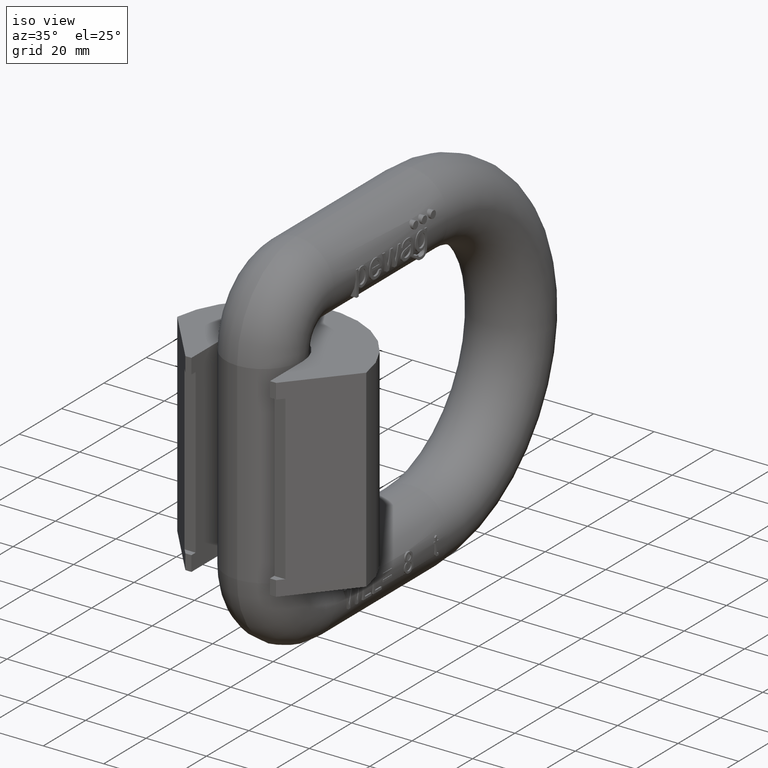
[diagram: clean part render]
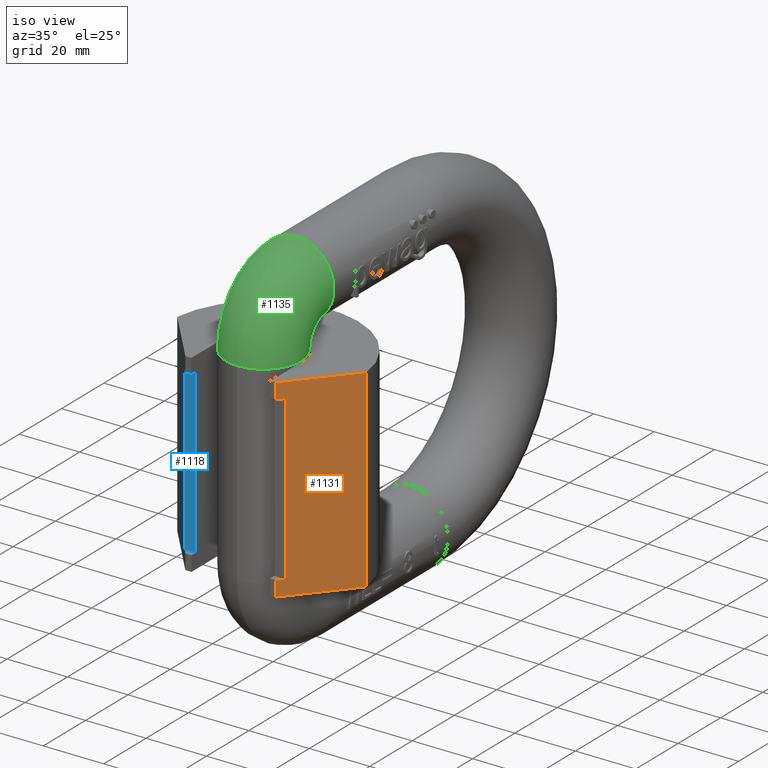
[diagram: same view with three faces highlighted in distinct colors, each labeled with its STEP entity id]
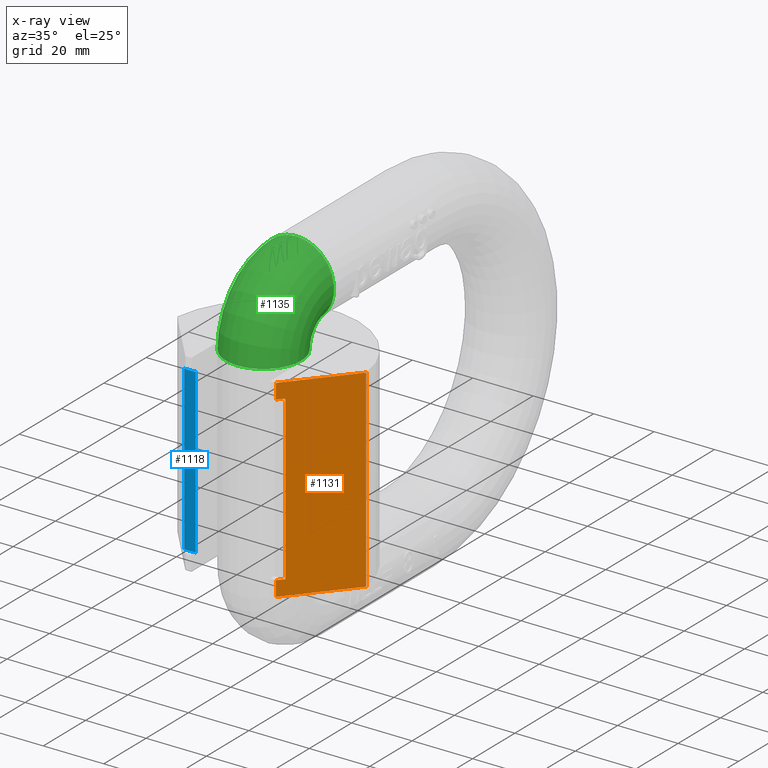
[diagram: x-ray of the same camera — body ghosted, the three highlighted faces saturated]
A machine part, iso view with three faces highlighted in distinct colors.
The next image is the same camera in x-ray (body ghosted, the three faces saturated) — at least one of them is partly hidden behind the body in this view.
Their STEP definitions:

[orange] entity #1131 — the highlighted planar face has unit normal (0.766, -0.6428, 0).
#945=PLANE('',#6777);
#1131=ADVANCED_FACE('',(#1520),#945,.T.);
#1520=FACE_OUTER_BOUND('',#1864,.T.);
#1864=EDGE_LOOP('',(#2402,#2403,#2404,#2405,#2406,#2407,#2408,#2409));
#2402=ORIENTED_EDGE('',*,*,#4866,.T.);
#2403=ORIENTED_EDGE('',*,*,#4887,.T.);
#2404=ORIENTED_EDGE('',*,*,#4893,.T.);
#2405=ORIENTED_EDGE('',*,*,#4896,.F.);
#2406=ORIENTED_EDGE('',*,*,#4890,.F.);
#2407=ORIENTED_EDGE('',*,*,#4884,.T.);
#2408=ORIENTED_EDGE('',*,*,#4869,.F.);
#2409=ORIENTED_EDGE('',*,*,#4858,.T.);
#4220=VERTEX_POINT('',#8230);
#4221=VERTEX_POINT('',#8232);
#4227=VERTEX_POINT('',#8246);
#4230=VERTEX_POINT('',#8254);
#4242=VERTEX_POINT('',#8285);
#4244=VERTEX_POINT('',#8291);
#4246=VERTEX_POINT('',#8297);
#4248=VERTEX_POINT('',#8303);
#4858=EDGE_CURVE('',#4221,#4220,#5805,.T.);
#4866=EDGE_CURVE('',#4220,#4227,#5811,.T.);
#4869=EDGE_CURVE('',#4221,#4230,#5814,.T.);
#4884=EDGE_CURVE('',#4242,#4230,#5828,.T.);
#4887=EDGE_CURVE('',#4227,#4244,#5831,.T.);
#4890=EDGE_CURVE('',#4242,#4246,#5834,.T.);
#4893=EDGE_CURVE('',#4244,#4248,#5837,.T.);
#4896=EDGE_CURVE('',#4246,#4248,#5840,.T.);
#5805=LINE('',#8231,#6203);
#5811=LINE('',#8247,#6209);
#5814=LINE('',#8253,#6212);
#5828=LINE('',#8284,#6226);
#5831=LINE('',#8290,#6229);
#5834=LINE('',#8296,#6232);
#5837=LINE('',#8302,#6235);
#5840=LINE('',#8308,#6238);
#6203=VECTOR('',#7066,1.);
#6209=VECTOR('',#7078,1.);
#6212=VECTOR('',#7083,1.);
#6226=VECTOR('',#7107,1.);
#6229=VECTOR('',#7112,1.);
#6232=VECTOR('',#7117,1.);
#6235=VECTOR('',#7122,1.);
#6238=VECTOR('',#7127,1.);
#6777=AXIS2_PLACEMENT_3D('',#8322,#7147,#7148);
#7066=DIRECTION('',(0.,0.,1.));
#7078=DIRECTION('',(-0.642787609686539,-0.766044443118978,0.));
#7083=DIRECTION('',(-0.642787609686539,-0.766044443118978,0.));
#7107=DIRECTION('',(0.,0.,-1.));
#7112=DIRECTION('',(0.,0.,-1.));
#7117=DIRECTION('',(0.642787609686539,0.766044443118978,0.));
#7122=DIRECTION('',(0.642787609686539,0.766044443118978,0.));
#7127=DIRECTION('',(0.,0.,1.));
#7147=DIRECTION('',(0.766044443118978,-0.642787609686539,0.));
#7148=DIRECTION('',(0.642787609686539,0.766044443118978,0.));
#8230=CARTESIAN_POINT('',(31.2603370435278,19.378315088417,32.));
#8231=CARTESIAN_POINT('',(31.2603370435278,19.378315088417,32.));
#8232=CARTESIAN_POINT('',(31.2603370435278,19.378315088417,-32.));
#8246=CARTESIAN_POINT('',(15.,0.,32.));
#8247=CARTESIAN_POINT('',(16.4346214183466,1.70971522932715,32.));
#8253=CARTESIAN_POINT('',(16.4346214183466,1.70971522932715,-32.));
#8254=CARTESIAN_POINT('',(15.,0.,-32.));
#8284=CARTESIAN_POINT('',(15.,0.,35.2000275));
#8285=CARTESIAN_POINT('',(15.,0.,-27.));
#8290=CARTESIAN_POINT('',(15.,0.,35.2000275));
#8291=CARTESIAN_POINT('',(15.,0.,27.));
#8296=CARTESIAN_POINT('',(8.80236133250197,-7.38605814759156,-27.));
#8297=CARTESIAN_POINT('',(16.6781992623546,2.,-27.));
#8302=CARTESIAN_POINT('',(8.80236133250197,-7.38605814759156,27.));
#8303=CARTESIAN_POINT('',(16.6781992623546,2.,27.));
#8308=CARTESIAN_POINT('',(16.6781992623546,2.,27.));
#8322=CARTESIAN_POINT('',(31.5,19.6639342778045,35.2000275));

[blue] entity #1118 — the highlighted planar face has unit normal (0, -1, 0).
#933=PLANE('',#6764);
#1118=ADVANCED_FACE('',(#1507),#933,.T.);
#1507=FACE_OUTER_BOUND('',#1851,.T.);
#1851=EDGE_LOOP('',(#2342,#2343,#2344,#2345));
#2342=ORIENTED_EDGE('',*,*,#4874,.F.);
#2343=ORIENTED_EDGE('',*,*,#4875,.T.);
#2344=ORIENTED_EDGE('',*,*,#4876,.T.);
#2345=ORIENTED_EDGE('',*,*,#4877,.T.);
#4234=VERTEX_POINT('',#8264);
#4235=VERTEX_POINT('',#8265);
#4236=VERTEX_POINT('',#8267);
#4237=VERTEX_POINT('',#8269);
#4874=EDGE_CURVE('',#4234,#4235,#5818,.T.);
#4875=EDGE_CURVE('',#4234,#4236,#5819,.T.);
#4876=EDGE_CURVE('',#4236,#4237,#5820,.T.);
#4877=EDGE_CURVE('',#4237,#4235,#5821,.T.);
#5818=LINE('',#8263,#6216);
#5819=LINE('',#8266,#6217);
#5820=LINE('',#8268,#6218);
#5821=LINE('',#8270,#6219);
#6216=VECTOR('',#7091,1.);
#6217=VECTOR('',#7092,1.);
#6218=VECTOR('',#7093,1.);
#6219=VECTOR('',#7094,1.);
#6764=AXIS2_PLACEMENT_3D('',#8271,#7095,#7096);
#7091=DIRECTION('',(1.,1.23908819712629E-16,0.));
#7092=DIRECTION('',(0.,0.,-1.));
#7093=DIRECTION('',(1.,1.23908819712629E-16,0.));
#7094=DIRECTION('',(0.,0.,1.));
#7095=DIRECTION('',(1.23908819712629E-16,-1.,0.));
#7096=DIRECTION('',(1.,1.24032728532342E-16,0.));
#8263=CARTESIAN_POINT('',(31.5,2.,27.));
#8264=CARTESIAN_POINT('',(-16.6781992623546,1.99999999999999,27.));
#8265=CARTESIAN_POINT('',(-13.,1.99999999999999,27.));
#8266=CARTESIAN_POINT('',(-16.6781992623546,1.99999999999999,27.));
#8267=CARTESIAN_POINT('',(-16.6781992623546,1.99999999999999,-27.));
#8268=CARTESIAN_POINT('',(31.5,2.,-27.));
#8269=CARTESIAN_POINT('',(-13.,1.99999999999999,-27.));
#8270=CARTESIAN_POINT('',(-13.,1.99999999999999,32.));
#8271=CARTESIAN_POINT('',(31.5,2.,27.));

[green] entity #1135 — the highlighted toroidal blend (fillet) surface has major radius 15.5 mm and minor (blend) radius 12.5 mm.
#180=TOROIDAL_SURFACE('',#6862,15.5,12.5);
#869=FACE_BOUND('',#1900,.T.);
#870=FACE_BOUND('',#1901,.T.);
#1135=ADVANCED_FACE('',(#869,#870),#180,.T.);
#1900=EDGE_LOOP('',(#2676));
#1901=EDGE_LOOP('',(#2677));
#2272=CIRCLE('',#6779,12.5);
#2312=CIRCLE('',#6861,12.5);
#2676=ORIENTED_EDGE('',*,*,#4904,.F.);
#2677=ORIENTED_EDGE('',*,*,#5162,.T.);
#4250=VERTEX_POINT('',#8325);
#4508=VERTEX_POINT('',#10533);
#4904=EDGE_CURVE('',#4250,#4250,#2272,.T.);
#5162=EDGE_CURVE('',#4508,#4508,#2312,.T.);
#6779=AXIS2_PLACEMENT_3D('',#8324,#7151,#7152);
#6861=AXIS2_PLACEMENT_3D('',#10532,#7373,#7374);
#6862=AXIS2_PLACEMENT_3D('',#10534,#7375,#7376);
#7151=DIRECTION('',(0.,1.,3.41201438250779E-15));
#7152=DIRECTION('',(0.,-3.33066907387547E-15,1.));
#7373=DIRECTION('',(0.,-2.90669283270036E-15,1.));
#7374=DIRECTION('',(0.,-1.,-2.77555756156289E-15));
#7375=DIRECTION('',(-1.,0.,0.));
#7376=DIRECTION('',(0.,0.,1.));
#8324=CARTESIAN_POINT('',(0.,30.9999999999999,47.5));
#8325=CARTESIAN_POINT('',(0.,30.9999999999999,60.));
#10532=CARTESIAN_POINT('',(0.,15.5,32.));
#10533=CARTESIAN_POINT('',(0.,3.00000000000001,31.9999999999999));
#10534=CARTESIAN_POINT('',(0.,31.,32.));